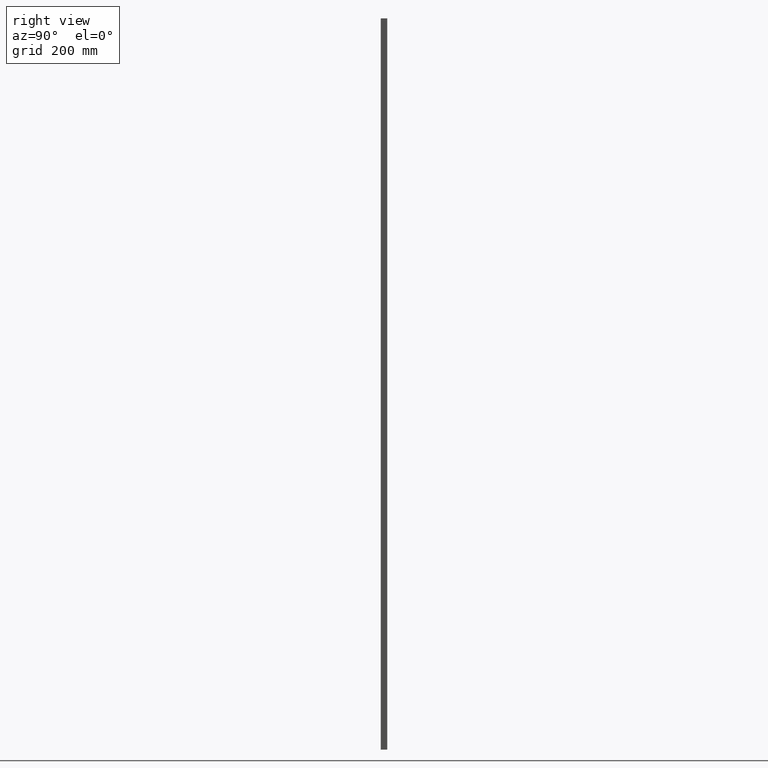
[diagram: clean part render]
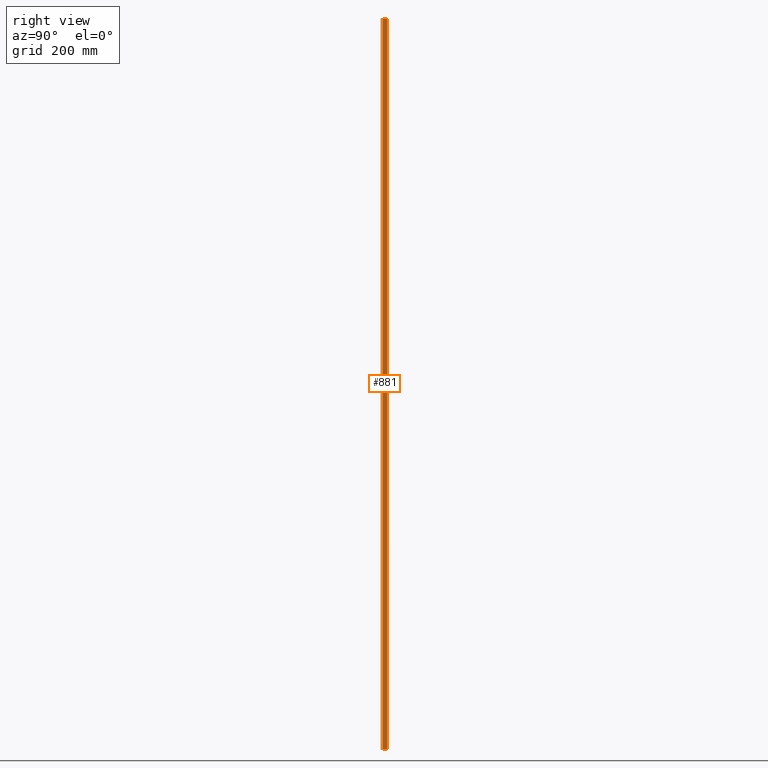
[diagram: same view with one face highlighted and labeled with its STEP entity id]
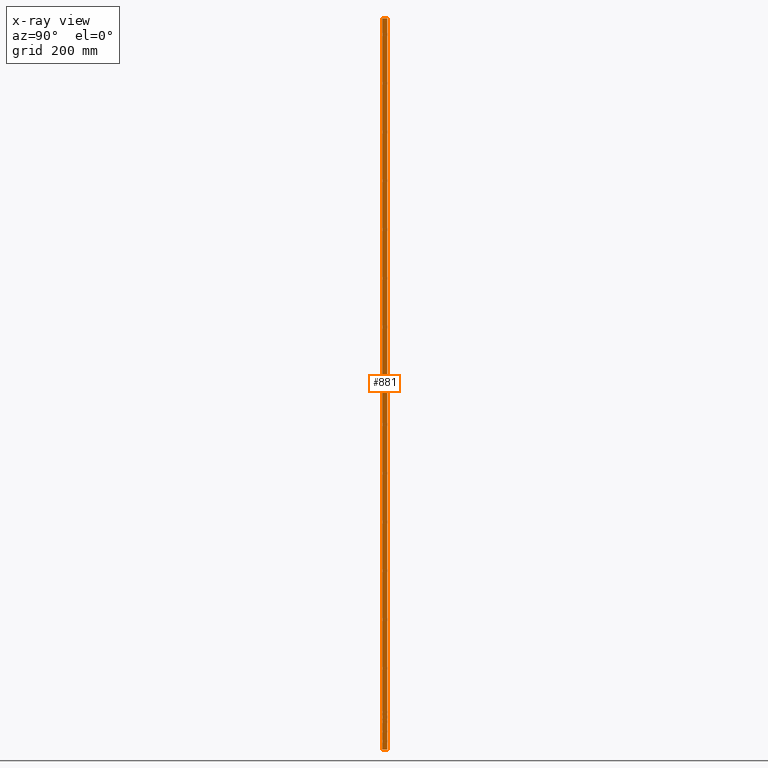
[diagram: x-ray of the same camera — body ghosted, the highlighted face saturated]
A machine part, right view. The second image highlights one B-rep face of the part: STEP entity #881.
The next image is the same camera in x-ray: the body ghosted, the highlighted face saturated — about 0% of this face is hidden behind the body in this view.
In plain terms, the highlighted planar face has unit normal (1, 0, 0).
Its self-contained STEP definition (entity closure, byte-faithful):
#82 = VECTOR ( 'NONE', #274, 1000.000000000000000 ) ;
#98 = CARTESIAN_POINT ( 'NONE',  ( 8.999999999999998200, 20.00000000000000700, 0.0000000000000000000 ) ) ;
#241 = EDGE_CURVE ( 'NONE', #2448, #2359, #349, .T. ) ;
#270 = AXIS2_PLACEMENT_3D ( 'NONE', #1666, #2133, #2130 ) ;
#274 = DIRECTION ( 'NONE',  ( 0.0000000000000000000, 0.0000000000000000000, 1.000000000000000000 ) ) ;
#349 = LINE ( 'NONE', #1928, #521 ) ;
#430 = CARTESIAN_POINT ( 'NONE',  ( 8.999999999999998200, 5.000000000000004400, -2250.000000000000000 ) ) ;
#521 = VECTOR ( 'NONE', #1260, 1000.000000000000000 ) ;
#601 = PLANE ( 'NONE',  #270 ) ;
#667 = VERTEX_POINT ( 'NONE', #430 ) ;
#881 = ADVANCED_FACE ( 'NONE', ( #1321 ), #601, .T. ) ;
#921 = CARTESIAN_POINT ( 'NONE',  ( 8.999999999999998200, 5.000000000000004400, -2250.000000000000000 ) ) ;
#950 = DIRECTION ( 'NONE',  ( 0.0000000000000000000, 1.000000000000000000, 0.0000000000000000000 ) ) ;
#965 = ORIENTED_EDGE ( 'NONE', *, *, #2710, .F. ) ;
#1024 = EDGE_LOOP ( 'NONE', ( #965, #2317, #1280, #2762 ) ) ;
#1162 = CARTESIAN_POINT ( 'NONE',  ( 8.999999999999998200, 5.000000000000004400, 0.0000000000000000000 ) ) ;
#1260 = DIRECTION ( 'NONE',  ( 0.0000000000000000000, 0.0000000000000000000, 1.000000000000000000 ) ) ;
#1280 = ORIENTED_EDGE ( 'NONE', *, *, #1665, .T. ) ;
#1321 = FACE_OUTER_BOUND ( 'NONE', #1024, .T. ) ;
#1377 = CARTESIAN_POINT ( 'NONE',  ( 8.999999999999998200, 5.000000000000004400, -2250.000000000000000 ) ) ;
#1447 = VERTEX_POINT ( 'NONE', #2184 ) ;
#1639 = LINE ( 'NONE', #921, #1776 ) ;
#1665 = EDGE_CURVE ( 'NONE', #667, #2448, #1639, .T. ) ;
#1666 = CARTESIAN_POINT ( 'NONE',  ( 8.999999999999998200, 5.000000000000004400, -2250.000000000000000 ) ) ;
#1776 = VECTOR ( 'NONE', #2431, 1000.000000000000000 ) ;
#1928 = CARTESIAN_POINT ( 'NONE',  ( 8.999999999999998200, 20.00000000000000700, -2250.000000000000000 ) ) ;
#2002 = EDGE_CURVE ( 'NONE', #667, #1447, #2661, .T. ) ;
#2130 = DIRECTION ( 'NONE',  ( 0.0000000000000000000, 0.0000000000000000000, -1.000000000000000000 ) ) ;
#2133 = DIRECTION ( 'NONE',  ( 1.000000000000000000, 0.0000000000000000000, 0.0000000000000000000 ) ) ;
#2184 = CARTESIAN_POINT ( 'NONE',  ( 8.999999999999998200, 5.000000000000004400, 0.0000000000000000000 ) ) ;
#2317 = ORIENTED_EDGE ( 'NONE', *, *, #2002, .F. ) ;
#2359 = VERTEX_POINT ( 'NONE', #98 ) ;
#2431 = DIRECTION ( 'NONE',  ( 0.0000000000000000000, 1.000000000000000000, 0.0000000000000000000 ) ) ;
#2448 = VERTEX_POINT ( 'NONE', #2537 ) ;
#2537 = CARTESIAN_POINT ( 'NONE',  ( 8.999999999999998200, 20.00000000000000700, -2250.000000000000000 ) ) ;
#2547 = VECTOR ( 'NONE', #950, 1000.000000000000000 ) ;
#2661 = LINE ( 'NONE', #1377, #82 ) ;
#2710 = EDGE_CURVE ( 'NONE', #1447, #2359, #2752, .T. ) ;
#2752 = LINE ( 'NONE', #1162, #2547 ) ;
#2762 = ORIENTED_EDGE ( 'NONE', *, *, #241, .T. ) ;